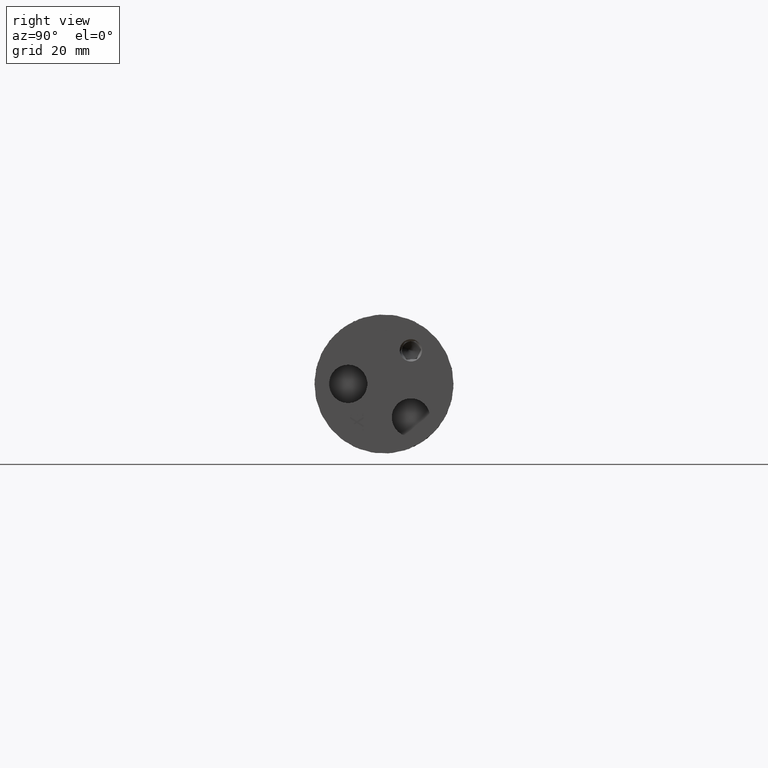
[diagram: clean part render]
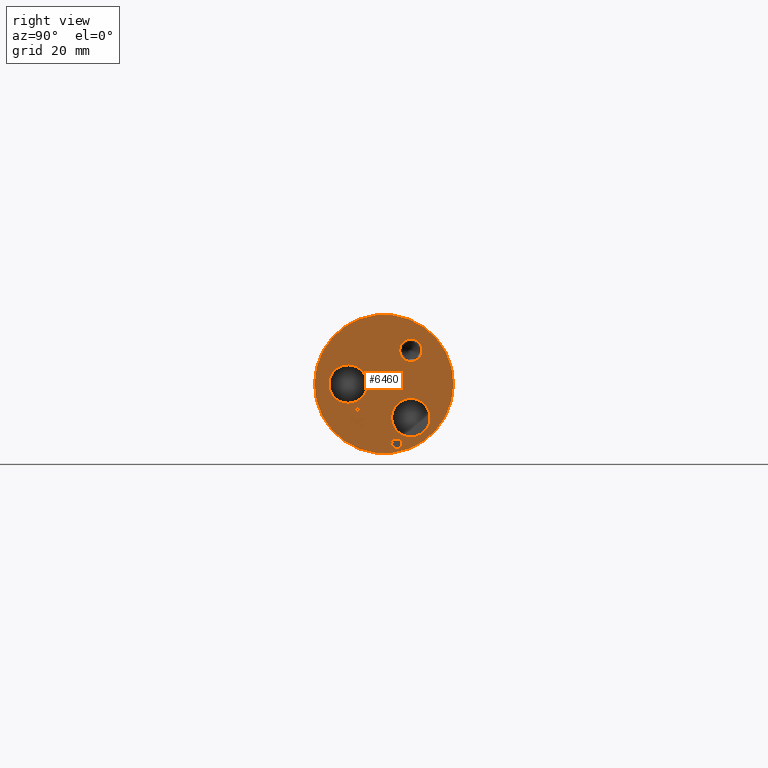
[diagram: same view with one face highlighted and labeled with its STEP entity id]
A machine part, right view. The second image highlights one B-rep face of the part: STEP entity #6460.
In plain terms, the highlighted planar face has unit normal (1, -0, -0).
Its self-contained STEP definition (entity closure, byte-faithful):
#94=B_SPLINE_CURVE_WITH_KNOTS('',2,(#9577,#9578,#9579,#9580),
 .UNSPECIFIED.,.F.,.F.,(3,1,3),(0.,1.,2.),.UNSPECIFIED.);
#95=B_SPLINE_CURVE_WITH_KNOTS('',2,(#9591,#9592,#9593,#9594),
 .UNSPECIFIED.,.F.,.F.,(3,1,3),(0.,1.,2.),.UNSPECIFIED.);
#96=B_SPLINE_CURVE_WITH_KNOTS('',2,(#9605,#9606,#9607,#9608),
 .UNSPECIFIED.,.F.,.F.,(3,1,3),(0.,1.,2.),.UNSPECIFIED.);
#310=LINE('',#9376,#805);
#313=LINE('',#9381,#808);
#315=LINE('',#9385,#810);
#317=LINE('',#9389,#812);
#319=LINE('',#9393,#814);
#321=LINE('',#9397,#816);
#323=LINE('',#9401,#818);
#325=LINE('',#9405,#820);
#327=LINE('',#9409,#822);
#329=LINE('',#9413,#824);
#331=LINE('',#9417,#826);
#333=LINE('',#9420,#828);
#350=LINE('',#9561,#845);
#353=LINE('',#9566,#848);
#358=LINE('',#9612,#853);
#365=LINE('',#9626,#860);
#367=LINE('',#9630,#862);
#369=LINE('',#9634,#864);
#371=LINE('',#9638,#866);
#373=LINE('',#9641,#868);
#374=LINE('',#9645,#869);
#378=LINE('',#9653,#873);
#381=LINE('',#9659,#876);
#384=LINE('',#9665,#879);
#387=LINE('',#9671,#882);
#390=LINE('',#9676,#885);
#404=LINE('',#9707,#899);
#407=LINE('',#9712,#902);
#409=LINE('',#9716,#904);
#411=LINE('',#9720,#906);
#413=LINE('',#9724,#908);
#415=LINE('',#9728,#910);
#417=LINE('',#9732,#912);
#419=LINE('',#9736,#914);
#421=LINE('',#9740,#916);
#423=LINE('',#9744,#918);
#425=LINE('',#9748,#920);
#427=LINE('',#9751,#922);
#428=LINE('',#9755,#923);
#432=LINE('',#9763,#927);
#435=LINE('',#9769,#930);
#438=LINE('',#9775,#933);
#441=LINE('',#9781,#936);
#444=LINE('',#9787,#939);
#447=LINE('',#9793,#942);
#450=LINE('',#9799,#945);
#453=LINE('',#9805,#948);
#456=LINE('',#9811,#951);
#459=LINE('',#9817,#954);
#462=LINE('',#9822,#957);
#805=VECTOR('',#7517,10.);
#808=VECTOR('',#7522,10.);
#810=VECTOR('',#7526,10.);
#812=VECTOR('',#7530,10.);
#814=VECTOR('',#7534,10.);
#816=VECTOR('',#7538,10.);
#818=VECTOR('',#7542,10.);
#820=VECTOR('',#7546,10.);
#822=VECTOR('',#7550,10.);
#824=VECTOR('',#7554,10.);
#826=VECTOR('',#7558,10.);
#828=VECTOR('',#7562,10.);
#845=VECTOR('',#7583,10.);
#848=VECTOR('',#7588,10.);
#853=VECTOR('',#7595,10.);
#860=VECTOR('',#7610,10.);
#862=VECTOR('',#7614,10.);
#864=VECTOR('',#7618,10.);
#866=VECTOR('',#7622,10.);
#868=VECTOR('',#7626,10.);
#869=VECTOR('',#7629,10.);
#873=VECTOR('',#7635,10.);
#876=VECTOR('',#7640,10.);
#879=VECTOR('',#7645,10.);
#882=VECTOR('',#7650,10.);
#885=VECTOR('',#7655,10.);
#899=VECTOR('',#7675,10.);
#902=VECTOR('',#7680,10.);
#904=VECTOR('',#7684,10.);
#906=VECTOR('',#7688,10.);
#908=VECTOR('',#7692,10.);
#910=VECTOR('',#7696,10.);
#912=VECTOR('',#7700,10.);
#914=VECTOR('',#7704,10.);
#916=VECTOR('',#7708,10.);
#918=VECTOR('',#7712,10.);
#920=VECTOR('',#7716,10.);
#922=VECTOR('',#7720,10.);
#923=VECTOR('',#7723,10.);
#927=VECTOR('',#7729,10.);
#930=VECTOR('',#7734,10.);
#933=VECTOR('',#7739,10.);
#936=VECTOR('',#7744,10.);
#939=VECTOR('',#7749,10.);
#942=VECTOR('',#7754,10.);
#945=VECTOR('',#7759,10.);
#948=VECTOR('',#7764,10.);
#951=VECTOR('',#7769,10.);
#954=VECTOR('',#7774,10.);
#957=VECTOR('',#7779,10.);
#1668=FACE_BOUND('',#2126,.T.);
#1669=FACE_BOUND('',#2127,.T.);
#1670=FACE_BOUND('',#2128,.T.);
#1671=FACE_BOUND('',#2129,.T.);
#1672=FACE_BOUND('',#2130,.T.);
#1673=FACE_BOUND('',#2131,.T.);
#1674=FACE_BOUND('',#2132,.T.);
#1675=FACE_BOUND('',#2133,.T.);
#1776=FACE_OUTER_BOUND('',#2125,.T.);
#2125=EDGE_LOOP('',(#4646,#4647));
#2126=EDGE_LOOP('',(#4648,#4649));
#2127=EDGE_LOOP('',(#4650,#4651));
#2128=EDGE_LOOP('',(#4652,#4653));
#2129=EDGE_LOOP('',(#4654,#4655,#4656,#4657,#4658,#4659,#4660,#4661,#4662,
#4663,#4664,#4665));
#2130=EDGE_LOOP('',(#4666,#4667,#4668,#4669,#4670,#4671,#4672,#4673,#4674,
#4675,#4676,#4677));
#2131=EDGE_LOOP('',(#4678,#4679,#4680,#4681,#4682,#4683));
#2132=EDGE_LOOP('',(#4684,#4685,#4686,#4687,#4688,#4689,#4690,#4691,#4692,
#4693,#4694));
#2133=EDGE_LOOP('',(#4695,#4696,#4697,#4698,#4699,#4700,#4701,#4702,#4703,
#4704,#4705,#4706));
#2423=CIRCLE('',#6770,2.5);
#2424=CIRCLE('',#6771,2.5);
#2427=CIRCLE('',#6840,15.5);
#2428=CIRCLE('',#6841,15.5);
#2429=CIRCLE('',#6842,4.283);
#2430=CIRCLE('',#6843,4.283);
#2431=CIRCLE('',#6844,4.283);
#2432=CIRCLE('',#6845,4.283);
#2696=VERTEX_POINT('',#9302);
#2697=VERTEX_POINT('',#9304);
#2717=VERTEX_POINT('',#9374);
#2718=VERTEX_POINT('',#9375);
#2719=VERTEX_POINT('',#9380);
#2720=VERTEX_POINT('',#9384);
#2721=VERTEX_POINT('',#9388);
#2722=VERTEX_POINT('',#9392);
#2723=VERTEX_POINT('',#9396);
#2724=VERTEX_POINT('',#9400);
#2725=VERTEX_POINT('',#9404);
#2726=VERTEX_POINT('',#9408);
#2727=VERTEX_POINT('',#9412);
#2728=VERTEX_POINT('',#9416);
#2752=VERTEX_POINT('',#9559);
#2753=VERTEX_POINT('',#9560);
#2754=VERTEX_POINT('',#9565);
#2755=VERTEX_POINT('',#9576);
#2756=VERTEX_POINT('',#9590);
#2757=VERTEX_POINT('',#9604);
#2758=VERTEX_POINT('',#9611);
#2761=VERTEX_POINT('',#9625);
#2762=VERTEX_POINT('',#9629);
#2763=VERTEX_POINT('',#9633);
#2764=VERTEX_POINT('',#9637);
#2765=VERTEX_POINT('',#9643);
#2766=VERTEX_POINT('',#9644);
#2769=VERTEX_POINT('',#9652);
#2771=VERTEX_POINT('',#9658);
#2773=VERTEX_POINT('',#9664);
#2775=VERTEX_POINT('',#9670);
#2789=VERTEX_POINT('',#9705);
#2790=VERTEX_POINT('',#9706);
#2791=VERTEX_POINT('',#9711);
#2792=VERTEX_POINT('',#9715);
#2793=VERTEX_POINT('',#9719);
#2794=VERTEX_POINT('',#9723);
#2795=VERTEX_POINT('',#9727);
#2796=VERTEX_POINT('',#9731);
#2797=VERTEX_POINT('',#9735);
#2798=VERTEX_POINT('',#9739);
#2799=VERTEX_POINT('',#9743);
#2800=VERTEX_POINT('',#9747);
#2801=VERTEX_POINT('',#9753);
#2802=VERTEX_POINT('',#9754);
#2805=VERTEX_POINT('',#9762);
#2807=VERTEX_POINT('',#9768);
#2809=VERTEX_POINT('',#9774);
#2811=VERTEX_POINT('',#9780);
#2813=VERTEX_POINT('',#9786);
#2815=VERTEX_POINT('',#9792);
#2817=VERTEX_POINT('',#9798);
#2819=VERTEX_POINT('',#9804);
#2821=VERTEX_POINT('',#9810);
#2823=VERTEX_POINT('',#9816);
#2825=VERTEX_POINT('',#9826);
#2826=VERTEX_POINT('',#9827);
#2827=VERTEX_POINT('',#9830);
#2828=VERTEX_POINT('',#9831);
#2829=VERTEX_POINT('',#9834);
#2830=VERTEX_POINT('',#9835);
#3337=EDGE_CURVE('',#2697,#2696,#2423,.T.);
#3338=EDGE_CURVE('',#2696,#2697,#2424,.T.);
#3366=EDGE_CURVE('',#2717,#2718,#310,.T.);
#3369=EDGE_CURVE('',#2718,#2719,#313,.T.);
#3371=EDGE_CURVE('',#2719,#2720,#315,.T.);
#3373=EDGE_CURVE('',#2720,#2721,#317,.T.);
#3375=EDGE_CURVE('',#2721,#2722,#319,.T.);
#3377=EDGE_CURVE('',#2722,#2723,#321,.T.);
#3379=EDGE_CURVE('',#2724,#2717,#323,.T.);
#3381=EDGE_CURVE('',#2725,#2724,#325,.T.);
#3383=EDGE_CURVE('',#2726,#2725,#327,.T.);
#3385=EDGE_CURVE('',#2727,#2726,#329,.T.);
#3387=EDGE_CURVE('',#2728,#2727,#331,.T.);
#3389=EDGE_CURVE('',#2723,#2728,#333,.T.);
#3417=EDGE_CURVE('',#2752,#2753,#350,.T.);
#3420=EDGE_CURVE('',#2753,#2754,#353,.T.);
#3422=EDGE_CURVE('',#2754,#2755,#94,.T.);
#3424=EDGE_CURVE('',#2755,#2756,#95,.T.);
#3426=EDGE_CURVE('',#2756,#2757,#96,.T.);
#3428=EDGE_CURVE('',#2757,#2758,#358,.T.);
#3435=EDGE_CURVE('',#2761,#2752,#365,.T.);
#3437=EDGE_CURVE('',#2762,#2761,#367,.T.);
#3439=EDGE_CURVE('',#2763,#2762,#369,.T.);
#3441=EDGE_CURVE('',#2764,#2763,#371,.T.);
#3443=EDGE_CURVE('',#2758,#2764,#373,.T.);
#3444=EDGE_CURVE('',#2765,#2766,#374,.T.);
#3448=EDGE_CURVE('',#2766,#2769,#378,.T.);
#3451=EDGE_CURVE('',#2769,#2771,#381,.T.);
#3454=EDGE_CURVE('',#2773,#2765,#384,.T.);
#3457=EDGE_CURVE('',#2775,#2773,#387,.T.);
#3460=EDGE_CURVE('',#2771,#2775,#390,.T.);
#3474=EDGE_CURVE('',#2789,#2790,#404,.T.);
#3477=EDGE_CURVE('',#2790,#2791,#407,.T.);
#3479=EDGE_CURVE('',#2791,#2792,#409,.T.);
#3481=EDGE_CURVE('',#2792,#2793,#411,.T.);
#3483=EDGE_CURVE('',#2793,#2794,#413,.T.);
#3485=EDGE_CURVE('',#2794,#2795,#415,.T.);
#3487=EDGE_CURVE('',#2796,#2789,#417,.T.);
#3489=EDGE_CURVE('',#2797,#2796,#419,.T.);
#3491=EDGE_CURVE('',#2798,#2797,#421,.T.);
#3493=EDGE_CURVE('',#2799,#2798,#423,.T.);
#3495=EDGE_CURVE('',#2800,#2799,#425,.T.);
#3497=EDGE_CURVE('',#2795,#2800,#427,.T.);
#3498=EDGE_CURVE('',#2801,#2802,#428,.T.);
#3502=EDGE_CURVE('',#2802,#2805,#432,.T.);
#3505=EDGE_CURVE('',#2805,#2807,#435,.T.);
#3508=EDGE_CURVE('',#2807,#2809,#438,.T.);
#3511=EDGE_CURVE('',#2809,#2811,#441,.T.);
#3514=EDGE_CURVE('',#2811,#2813,#444,.T.);
#3517=EDGE_CURVE('',#2815,#2801,#447,.T.);
#3520=EDGE_CURVE('',#2817,#2815,#450,.T.);
#3523=EDGE_CURVE('',#2819,#2817,#453,.T.);
#3526=EDGE_CURVE('',#2821,#2819,#456,.T.);
#3529=EDGE_CURVE('',#2823,#2821,#459,.T.);
#3532=EDGE_CURVE('',#2813,#2823,#462,.T.);
#3534=EDGE_CURVE('',#2825,#2826,#2427,.T.);
#3535=EDGE_CURVE('',#2826,#2825,#2428,.T.);
#3536=EDGE_CURVE('',#2827,#2828,#2429,.T.);
#3537=EDGE_CURVE('',#2828,#2827,#2430,.T.);
#3538=EDGE_CURVE('',#2829,#2830,#2431,.T.);
#3539=EDGE_CURVE('',#2830,#2829,#2432,.T.);
#4646=ORIENTED_EDGE('',*,*,#3534,.T.);
#4647=ORIENTED_EDGE('',*,*,#3535,.T.);
#4648=ORIENTED_EDGE('',*,*,#3337,.T.);
#4649=ORIENTED_EDGE('',*,*,#3338,.T.);
#4650=ORIENTED_EDGE('',*,*,#3536,.T.);
#4651=ORIENTED_EDGE('',*,*,#3537,.T.);
#4652=ORIENTED_EDGE('',*,*,#3538,.T.);
#4653=ORIENTED_EDGE('',*,*,#3539,.T.);
#4654=ORIENTED_EDGE('',*,*,#3498,.T.);
#4655=ORIENTED_EDGE('',*,*,#3502,.T.);
#4656=ORIENTED_EDGE('',*,*,#3505,.T.);
#4657=ORIENTED_EDGE('',*,*,#3508,.T.);
#4658=ORIENTED_EDGE('',*,*,#3511,.T.);
#4659=ORIENTED_EDGE('',*,*,#3514,.T.);
#4660=ORIENTED_EDGE('',*,*,#3532,.T.);
#4661=ORIENTED_EDGE('',*,*,#3529,.T.);
#4662=ORIENTED_EDGE('',*,*,#3526,.T.);
#4663=ORIENTED_EDGE('',*,*,#3523,.T.);
#4664=ORIENTED_EDGE('',*,*,#3520,.T.);
#4665=ORIENTED_EDGE('',*,*,#3517,.T.);
#4666=ORIENTED_EDGE('',*,*,#3474,.T.);
#4667=ORIENTED_EDGE('',*,*,#3477,.T.);
#4668=ORIENTED_EDGE('',*,*,#3479,.T.);
#4669=ORIENTED_EDGE('',*,*,#3481,.T.);
#4670=ORIENTED_EDGE('',*,*,#3483,.T.);
#4671=ORIENTED_EDGE('',*,*,#3485,.T.);
#4672=ORIENTED_EDGE('',*,*,#3497,.T.);
#4673=ORIENTED_EDGE('',*,*,#3495,.T.);
#4674=ORIENTED_EDGE('',*,*,#3493,.T.);
#4675=ORIENTED_EDGE('',*,*,#3491,.T.);
#4676=ORIENTED_EDGE('',*,*,#3489,.T.);
#4677=ORIENTED_EDGE('',*,*,#3487,.T.);
#4678=ORIENTED_EDGE('',*,*,#3444,.T.);
#4679=ORIENTED_EDGE('',*,*,#3448,.T.);
#4680=ORIENTED_EDGE('',*,*,#3451,.T.);
#4681=ORIENTED_EDGE('',*,*,#3460,.T.);
#4682=ORIENTED_EDGE('',*,*,#3457,.T.);
#4683=ORIENTED_EDGE('',*,*,#3454,.T.);
#4684=ORIENTED_EDGE('',*,*,#3417,.T.);
#4685=ORIENTED_EDGE('',*,*,#3420,.T.);
#4686=ORIENTED_EDGE('',*,*,#3422,.T.);
#4687=ORIENTED_EDGE('',*,*,#3424,.T.);
#4688=ORIENTED_EDGE('',*,*,#3426,.T.);
#4689=ORIENTED_EDGE('',*,*,#3428,.T.);
#4690=ORIENTED_EDGE('',*,*,#3443,.T.);
#4691=ORIENTED_EDGE('',*,*,#3441,.T.);
#4692=ORIENTED_EDGE('',*,*,#3439,.T.);
#4693=ORIENTED_EDGE('',*,*,#3437,.T.);
#4694=ORIENTED_EDGE('',*,*,#3435,.T.);
#4695=ORIENTED_EDGE('',*,*,#3366,.T.);
#4696=ORIENTED_EDGE('',*,*,#3369,.T.);
#4697=ORIENTED_EDGE('',*,*,#3371,.T.);
#4698=ORIENTED_EDGE('',*,*,#3373,.T.);
#4699=ORIENTED_EDGE('',*,*,#3375,.T.);
#4700=ORIENTED_EDGE('',*,*,#3377,.T.);
#4701=ORIENTED_EDGE('',*,*,#3389,.T.);
#4702=ORIENTED_EDGE('',*,*,#3387,.T.);
#4703=ORIENTED_EDGE('',*,*,#3385,.T.);
#4704=ORIENTED_EDGE('',*,*,#3383,.T.);
#4705=ORIENTED_EDGE('',*,*,#3381,.T.);
#4706=ORIENTED_EDGE('',*,*,#3379,.T.);
#6226=PLANE('',#6839);
#6460=ADVANCED_FACE('',(#1776,#1668,#1669,#1670,#1671,#1672,#1673,#1674,
#1675),#6226,.T.);
#6770=AXIS2_PLACEMENT_3D('',#9305,#7472,#7473);
#6771=AXIS2_PLACEMENT_3D('',#9306,#7474,#7475);
#6839=AXIS2_PLACEMENT_3D('',#9825,#7783,#7784);
#6840=AXIS2_PLACEMENT_3D('',#9828,#7785,#7786);
#6841=AXIS2_PLACEMENT_3D('',#9829,#7787,#7788);
#6842=AXIS2_PLACEMENT_3D('',#9832,#7789,#7790);
#6843=AXIS2_PLACEMENT_3D('',#9833,#7791,#7792);
#6844=AXIS2_PLACEMENT_3D('',#9836,#7793,#7794);
#6845=AXIS2_PLACEMENT_3D('',#9837,#7795,#7796);
#7472=DIRECTION('center_axis',(-1.,8.03270428259781E-16,-9.30153115721361E-17));
#7473=DIRECTION('ref_axis',(-3.82009734100202E-16,-0.899151778146412,0.437636926979596));
#7474=DIRECTION('center_axis',(-1.,8.03270428259781E-16,-9.30153115721361E-17));
#7475=DIRECTION('ref_axis',(-3.82009734100202E-16,-0.899151778146412,0.437636926979596));
#7517=DIRECTION('',(-4.4423359028994E-16,-2.4651903288154E-32,-1.));
#7522=DIRECTION('',(-1.48029736616686E-16,-1.,9.04116846550586E-32));
#7526=DIRECTION('',(-4.4423359028994E-16,-2.4651903288154E-32,-1.));
#7530=DIRECTION('',(1.48029736616686E-16,1.,-9.04116846550586E-32));
#7534=DIRECTION('',(-4.4423359028994E-16,-2.4651903288154E-32,-1.));
#7538=DIRECTION('',(-1.48029736616686E-16,-1.,9.04116846550586E-32));
#7542=DIRECTION('',(1.48029736616686E-16,1.,-9.04116846550586E-32));
#7546=DIRECTION('',(4.4423359028994E-16,2.4651903288154E-32,1.));
#7550=DIRECTION('',(-1.48029736616686E-16,-1.,9.04116846550586E-32));
#7554=DIRECTION('',(4.4423359028994E-16,2.4651903288154E-32,1.));
#7558=DIRECTION('',(1.48029736616686E-16,1.,-9.04116846550586E-32));
#7562=DIRECTION('',(4.4423359028994E-16,2.4651903288154E-32,1.));
#7583=DIRECTION('',(1.48029736616686E-16,1.,-9.04116846550586E-32));
#7588=DIRECTION('',(-4.4423359028994E-16,-2.4651903288154E-32,-1.));
#7595=DIRECTION('',(-3.95772686809487E-16,-0.774214179185868,-0.632923695833513));
#7610=DIRECTION('',(4.4423359028994E-16,2.4651903288154E-32,1.));
#7614=DIRECTION('',(-1.48029736616686E-16,-1.,9.04116846550586E-32));
#7618=DIRECTION('',(4.4423359028994E-16,2.4651903288154E-32,1.));
#7622=DIRECTION('',(3.92212818853613E-16,0.783042313268789,0.621968436201278));
#7626=DIRECTION('',(4.4423359028994E-16,2.4651903288154E-32,1.));
#7629=DIRECTION('',(4.4423359028994E-16,2.4651903288154E-32,1.));
#7635=DIRECTION('',(1.48029736616686E-16,1.,-9.04116846550586E-32));
#7640=DIRECTION('',(-4.4423359028994E-16,-2.4651903288154E-32,-1.));
#7645=DIRECTION('',(-1.48029736616686E-16,-1.,9.04116846550586E-32));
#7650=DIRECTION('',(-4.4423359028994E-16,-2.4651903288154E-32,-1.));
#7655=DIRECTION('',(-1.48029736616686E-16,-1.,9.04116846550586E-32));
#7675=DIRECTION('',(-1.48029736616686E-16,-1.,9.04116846550586E-32));
#7680=DIRECTION('',(4.4423359028994E-16,2.4651903288154E-32,1.));
#7684=DIRECTION('',(-1.48029736616686E-16,-1.,9.04116846550586E-32));
#7688=DIRECTION('',(-4.4423359028994E-16,-2.4651903288154E-32,-1.));
#7692=DIRECTION('',(-1.48029736616686E-16,-1.,9.04116846550586E-32));
#7696=DIRECTION('',(4.4423359028994E-16,2.4651903288154E-32,1.));
#7700=DIRECTION('',(-4.4423359028994E-16,-2.4651903288154E-32,-1.));
#7704=DIRECTION('',(-1.48029736616686E-16,-1.,9.04116846550586E-32));
#7708=DIRECTION('',(4.4423359028994E-16,2.4651903288154E-32,1.));
#7712=DIRECTION('',(-1.48029736616686E-16,-1.,9.04116846550586E-32));
#7716=DIRECTION('',(-4.4423359028994E-16,-2.4651903288154E-32,-1.));
#7720=DIRECTION('',(1.48029736616686E-16,1.,-9.04116846550586E-32));
#7723=DIRECTION('',(4.4423359028994E-16,2.4651903288154E-32,1.));
#7729=DIRECTION('',(3.57658528239811E-16,0.853796175794036,0.520607424264656));
#7734=DIRECTION('',(1.0891483950317E-16,-0.849159811848736,0.528135980540068));
#7739=DIRECTION('',(4.4423359028994E-16,2.4651903288154E-32,1.));
#7744=DIRECTION('',(-1.13468420752348E-16,0.843830115736994,-0.536610413405565));
#7749=DIRECTION('',(3.59571586012338E-16,0.850471045146917,0.526021863962622));
#7754=DIRECTION('',(-3.59160202615043E-16,-0.851191118645098,-0.524855865490428));
#7759=DIRECTION('',(1.1312730942393E-16,-0.844232761378656,0.535976720217371));
#7764=DIRECTION('',(-4.4423359028994E-16,-2.4651903288154E-32,-1.));
#7769=DIRECTION('',(-1.08641108998749E-16,0.849477082513831,-0.527625517089336));
#7774=DIRECTION('',(-3.57424686185749E-16,-0.854198555614438,-0.519946946895746));
#7779=DIRECTION('',(-4.4423359028994E-16,-2.4651903288154E-32,-1.));
#7783=DIRECTION('center_axis',(1.,-1.48029736616686E-16,-4.4423359028994E-16));
#7784=DIRECTION('ref_axis',(-4.4423359028994E-16,-2.4651903288154E-32,-1.));
#7785=DIRECTION('center_axis',(1.,-1.48029736616686E-16,-4.4423359028994E-16));
#7786=DIRECTION('ref_axis',(3.33066907387545E-16,1.,-1.7261141136369E-31));
#7787=DIRECTION('center_axis',(1.,-1.48029736616686E-16,-4.4423359028994E-16));
#7788=DIRECTION('ref_axis',(3.33066907387545E-16,1.,-1.7261141136369E-31));
#7789=DIRECTION('center_axis',(-1.,1.48029736616686E-16,4.4423359028994E-16));
#7790=DIRECTION('ref_axis',(-4.44233590289941E-16,-2.4651903288154E-32,
-1.));
#7791=DIRECTION('center_axis',(-1.,1.48029736616686E-16,4.4423359028994E-16));
#7792=DIRECTION('ref_axis',(-4.44233590289941E-16,-2.4651903288154E-32,
-1.));
#7793=DIRECTION('center_axis',(-1.,1.48029736616686E-16,4.4423359028994E-16));
#7794=DIRECTION('ref_axis',(-4.44233590289941E-16,-2.4651903288154E-32,
-1.));
#7795=DIRECTION('center_axis',(-1.,1.48029736616686E-16,4.4423359028994E-16));
#7796=DIRECTION('ref_axis',(-4.44233590289941E-16,-2.4651903288154E-32,
-1.));
#9302=CARTESIAN_POINT('',(29.9999999999999,8.24787944536602,6.40590768255097));
#9304=CARTESIAN_POINT('',(29.9999999999999,3.75212055463396,8.59409231744895));
#9305=CARTESIAN_POINT('Origin',(29.9999999999999,5.99999999999999,7.49999999999996));
#9306=CARTESIAN_POINT('Origin',(29.9999999999999,5.99999999999999,7.49999999999996));
#9374=CARTESIAN_POINT('',(30.,-4.56149355822841,-10.0203199201649));
#9375=CARTESIAN_POINT('',(30.,-4.56149355822841,-10.4190233395736));
#9376=CARTESIAN_POINT('',(30.,-4.56149355822841,-5.20951166978678));
#9380=CARTESIAN_POINT('',(30.,-5.73815486916625,-10.4190233395736));
#9381=CARTESIAN_POINT('',(30.,1.00592256541687,-10.4190233395736));
#9384=CARTESIAN_POINT('',(30.,-5.73815486916625,-11.7998985970378));
#9385=CARTESIAN_POINT('',(30.,-5.73815486916625,-5.8999492985189));
#9388=CARTESIAN_POINT('',(30.,-4.56149355822841,-11.7998985970378));
#9389=CARTESIAN_POINT('',(30.,1.59425322088579,-11.7998985970378));
#9392=CARTESIAN_POINT('',(30.,-4.56149355822841,-12.1986020164465));
#9393=CARTESIAN_POINT('',(30.,-4.56149355822841,-6.09930100822325));
#9396=CARTESIAN_POINT('',(30.,-7.5614936774377,-12.1986020164465));
#9397=CARTESIAN_POINT('',(30.,0.0942531612811477,-12.1986020164465));
#9400=CARTESIAN_POINT('',(30.,-7.5614936774377,-10.0203199201649));
#9401=CARTESIAN_POINT('',(30.,1.59425322088579,-10.0203199201649));
#9404=CARTESIAN_POINT('',(30.,-7.5614936774377,-10.4190233395736));
#9405=CARTESIAN_POINT('',(30.,-7.5614936774377,-5.01015996008244));
#9408=CARTESIAN_POINT('',(30.,-6.09309815717643,-10.4190233395736));
#9409=CARTESIAN_POINT('',(30.,0.0942531612811477,-10.4190233395736));
#9412=CARTESIAN_POINT('',(30.,-6.09309815717643,-11.7998985970378));
#9413=CARTESIAN_POINT('',(30.,-6.09309815717643,-5.20951166978678));
#9416=CARTESIAN_POINT('',(30.,-7.5614936774377,-11.7998985970378));
#9417=CARTESIAN_POINT('',(30.,0.828450921411784,-11.7998985970378));
#9420=CARTESIAN_POINT('',(30.,-7.5614936774377,-5.8999492985189));
#9559=CARTESIAN_POINT('',(30.,0.364546225801733,-12.2956006155044));
#9560=CARTESIAN_POINT('',(30.,3.86454616619709,-12.2956006155044));
#9561=CARTESIAN_POINT('',(30.,5.80727308309854,-12.2956006155044));
#9565=CARTESIAN_POINT('',(30.,3.86454616619709,-13.197545494796));
#9566=CARTESIAN_POINT('',(30.,3.86454616619709,-6.59877274739798));
#9576=CARTESIAN_POINT('',(30.,3.68018636382618,-14.08814515548));
#9577=CARTESIAN_POINT('Ctrl Pts',(30.,3.86454616619709,-13.197545494796));
#9578=CARTESIAN_POINT('Ctrl Pts',(30.,3.86454616619709,-13.4981937878931));
#9579=CARTESIAN_POINT('Ctrl Pts',(30.,3.79931115920431,-13.9037853531091));
#9580=CARTESIAN_POINT('Ctrl Pts',(30.,3.68018636382618,-14.08814515548));
#9590=CARTESIAN_POINT('',(30.,2.91438410782396,-14.4852278067404));
#9591=CARTESIAN_POINT('Ctrl Pts',(30.,3.68018636382618,-14.08814515548));
#9592=CARTESIAN_POINT('Ctrl Pts',(30.,3.56106156844806,-14.2725049578509));
#9593=CARTESIAN_POINT('Ctrl Pts',(30.,3.18950565905439,-14.4852278067404));
#9594=CARTESIAN_POINT('Ctrl Pts',(30.,2.91438410782396,-14.4852278067404));
#9604=CARTESIAN_POINT('',(30.,1.8876418238506,-13.7591338158643));
#9605=CARTESIAN_POINT('Ctrl Pts',(30.,2.91438410782396,-14.4852278067404));
#9606=CARTESIAN_POINT('Ctrl Pts',(30.,2.53148297982284,-14.4852278067404));
#9607=CARTESIAN_POINT('Ctrl Pts',(30.,2.01243922853245,-14.0938177647837));
#9608=CARTESIAN_POINT('Ctrl Pts',(30.,1.8876418238506,-13.7591338158643));
#9611=CARTESIAN_POINT('',(30.,0.364546225801733,-15.0042715580308));
#9612=CARTESIAN_POINT('',(30.,6.25418008777832,-10.1894684567129));
#9625=CARTESIAN_POINT('',(30.,0.364546225801733,-12.7607545784095));
#9626=CARTESIAN_POINT('',(30.,0.364546225801733,-6.14780030775223));
#9629=CARTESIAN_POINT('',(30.,1.75717180986504,-12.7607545784095));
#9630=CARTESIAN_POINT('',(30.,4.05727311290086,-12.7607545784095));
#9633=CARTESIAN_POINT('',(30.,1.75717180986504,-13.2939798529592));
#9634=CARTESIAN_POINT('',(30.,1.75717180986504,-6.38037728920476));
#9637=CARTESIAN_POINT('',(30.,0.364546225801733,-14.4001386671846));
#9638=CARTESIAN_POINT('',(30.,6.83170645796487,-9.26329041760496));
#9641=CARTESIAN_POINT('',(30.,0.364546225801733,-7.20006933359232));
#9643=CARTESIAN_POINT('',(30.,0.328578564001663,11.8914357528764));
#9644=CARTESIAN_POINT('',(30.,0.328578564001663,13.9193935789564));
#9645=CARTESIAN_POINT('',(30.,0.328578564001663,6.95969678947817));
#9652=CARTESIAN_POINT('',(30.,3.82857850439702,13.9193935789564));
#9653=CARTESIAN_POINT('',(30.,5.78928925219851,13.9193935789564));
#9658=CARTESIAN_POINT('',(30.,3.82857850439702,13.4542396160513));
#9659=CARTESIAN_POINT('',(30.,3.82857850439702,6.72711980802564));
#9664=CARTESIAN_POINT('',(30.,0.742679043173236,11.8914357528764));
#9665=CARTESIAN_POINT('',(30.,4.03928928200083,11.8914357528764));
#9670=CARTESIAN_POINT('',(30.,0.742679043173236,13.4542396160513));
#9671=CARTESIAN_POINT('',(30.,0.742679043173236,5.94571787643819));
#9676=CARTESIAN_POINT('',(30.,4.24633952158661,13.4542396160513));
#9705=CARTESIAN_POINT('',(30.,-5.73815486916625,-7.08839111646437));
#9706=CARTESIAN_POINT('',(30.,-6.09309815717643,-7.08839111646437));
#9707=CARTESIAN_POINT('',(30.,0.828450921411784,-7.08839111646437));
#9711=CARTESIAN_POINT('',(30.,-6.09309815717643,-5.70994697741116));
#9712=CARTESIAN_POINT('',(30.,-6.09309815717643,-2.85497348870559));
#9715=CARTESIAN_POINT('',(30.,-7.20655038942752,-5.70994697741116));
#9716=CARTESIAN_POINT('',(30.,0.271724805286235,-5.70994697741116));
#9719=CARTESIAN_POINT('',(30.,-7.20655038942752,-7.18806697131655));
#9720=CARTESIAN_POINT('',(30.,-7.20655038942752,-3.59403348565828));
#9723=CARTESIAN_POINT('',(30.,-7.5614936774377,-7.18806697131655));
#9724=CARTESIAN_POINT('',(30.,0.0942531612811477,-7.18806697131655));
#9727=CARTESIAN_POINT('',(30.,-7.5614936774377,-5.31124355800247));
#9728=CARTESIAN_POINT('',(30.,-7.5614936774377,-2.65562177900124));
#9731=CARTESIAN_POINT('',(30.,-5.73815486916625,-5.70994697741116));
#9732=CARTESIAN_POINT('',(30.,-5.73815486916625,-3.54419555823219));
#9735=CARTESIAN_POINT('',(30.,-4.91643684623858,-5.70994697741116));
#9736=CARTESIAN_POINT('',(30.,1.00592256541687,-5.70994697741116));
#9739=CARTESIAN_POINT('',(30.,-4.91643684623858,-7.18806697131655));
#9740=CARTESIAN_POINT('',(30.,-4.91643684623858,-2.85497348870559));
#9743=CARTESIAN_POINT('',(30.,-4.56149355822841,-7.18806697131655));
#9744=CARTESIAN_POINT('',(30.,1.4167815768807,-7.18806697131655));
#9747=CARTESIAN_POINT('',(30.,-4.56149355822841,-5.31124355800247));
#9748=CARTESIAN_POINT('',(30.,-4.56149355822841,-3.59403348565828));
#9751=CARTESIAN_POINT('',(30.,1.59425322088579,-5.31124355800247));
#9753=CARTESIAN_POINT('',(30.,-7.5614936774377,-9.69941228990909));
#9754=CARTESIAN_POINT('',(30.,-7.5614936774377,-9.24236202863571));
#9755=CARTESIAN_POINT('',(30.,-7.5614936774377,-4.62118101431786));
#9762=CARTESIAN_POINT('',(30.,-6.36538341921163,-8.51302650532713));
#9763=CARTESIAN_POINT('',(30.,0.671436115839333,-4.22228288639362));
#9768=CARTESIAN_POINT('',(30.,-7.5614936774377,-7.76910427155238));
#9769=CARTESIAN_POINT('',(30.,-3.78325831961148,-10.1189823599565));
#9774=CARTESIAN_POINT('',(30.,-7.5614936774377,-7.33879631280032));
#9775=CARTESIAN_POINT('',(30.,-7.5614936774377,-3.66939815640017));
#9780=CARTESIAN_POINT('',(30.,-6.05906249942203,-8.29422584833456));
#9781=CARTESIAN_POINT('',(30.,-3.02054212522268,-10.2264888047429));
#9786=CARTESIAN_POINT('',(30.,-4.56149355822841,-7.36796973373266));
#9787=CARTESIAN_POINT('',(30.,1.53905515088627,-3.59474074319257));
#9792=CARTESIAN_POINT('',(30.,-6.0396135521338,-8.76100058325205));
#9793=CARTESIAN_POINT('',(30.,0.1519154881542,-4.94322069579012));
#9798=CARTESIAN_POINT('',(30.,-4.56149355822841,-9.69941228990909));
#9799=CARTESIAN_POINT('',(30.,-3.10761378421866,-10.622434646435));
#9804=CARTESIAN_POINT('',(30.,-4.56149355822841,-9.26910433115703));
#9805=CARTESIAN_POINT('',(30.,-4.56149355822841,-4.84970614495455));
#9810=CARTESIAN_POINT('',(30.,-5.73572375075522,-8.53976880784845));
#9811=CARTESIAN_POINT('',(30.,-2.19667012915892,-10.7379387591505));
#9816=CARTESIAN_POINT('',(30.,-4.56149355822841,-7.82501999500604));
#9817=CARTESIAN_POINT('',(30.,1.08065791840112,-4.39066692227501));
#9822=CARTESIAN_POINT('',(30.,-4.56149355822841,-3.91250999750303));
#9825=CARTESIAN_POINT('Origin',(30.,7.74999999999999,-1.33270077086982E-14));
#9826=CARTESIAN_POINT('',(30.,15.5,-1.33270077086982E-14));
#9827=CARTESIAN_POINT('',(30.,-15.5,-1.52252102473766E-14));
#9828=CARTESIAN_POINT('Origin',(30.,-4.44089209850057E-15,-1.33270077086982E-14));
#9829=CARTESIAN_POINT('Origin',(30.,-4.44089209850057E-15,-1.33270077086982E-14));
#9830=CARTESIAN_POINT('',(30.,6.,-11.783));
#9831=CARTESIAN_POINT('',(30.,6.,-3.21700000000001));
#9832=CARTESIAN_POINT('Origin',(30.,6.,-7.50000000000001));
#9833=CARTESIAN_POINT('Origin',(30.,6.,-7.50000000000001));
#9834=CARTESIAN_POINT('',(30.,-8.00000000000001,-4.28300000000001));
#9835=CARTESIAN_POINT('',(30.,-8.00000000000001,4.28299999999999));
#9836=CARTESIAN_POINT('Origin',(30.,-8.00000000000001,-1.33270077086982E-14));
#9837=CARTESIAN_POINT('Origin',(30.,-8.00000000000001,-1.33270077086982E-14));